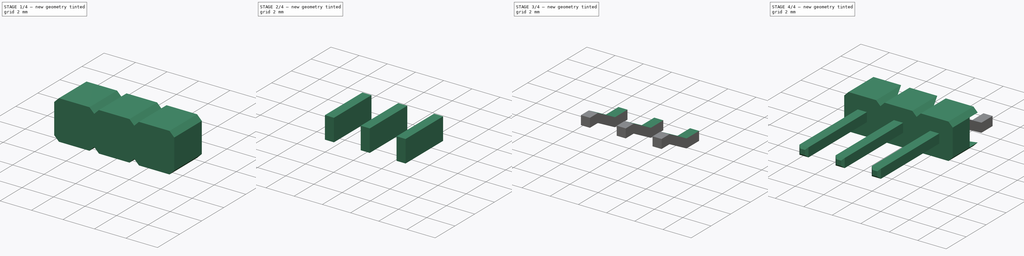
[diagram: build sequence overview — one tinted view per stage of 4, left to right]
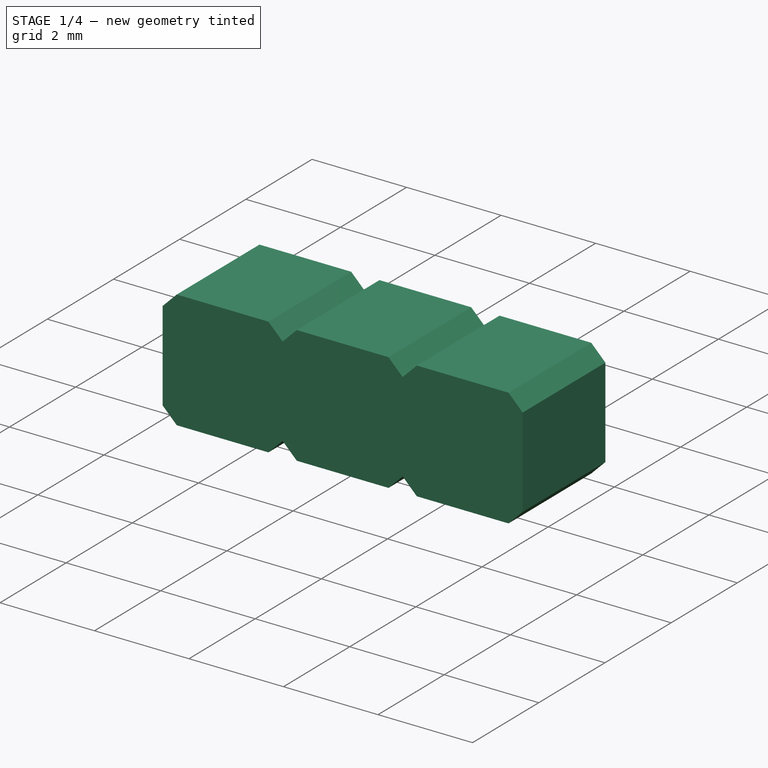
[diagram: stage 1 of 4 — iso view after this stage's code; geometry added in this stage tinted green]
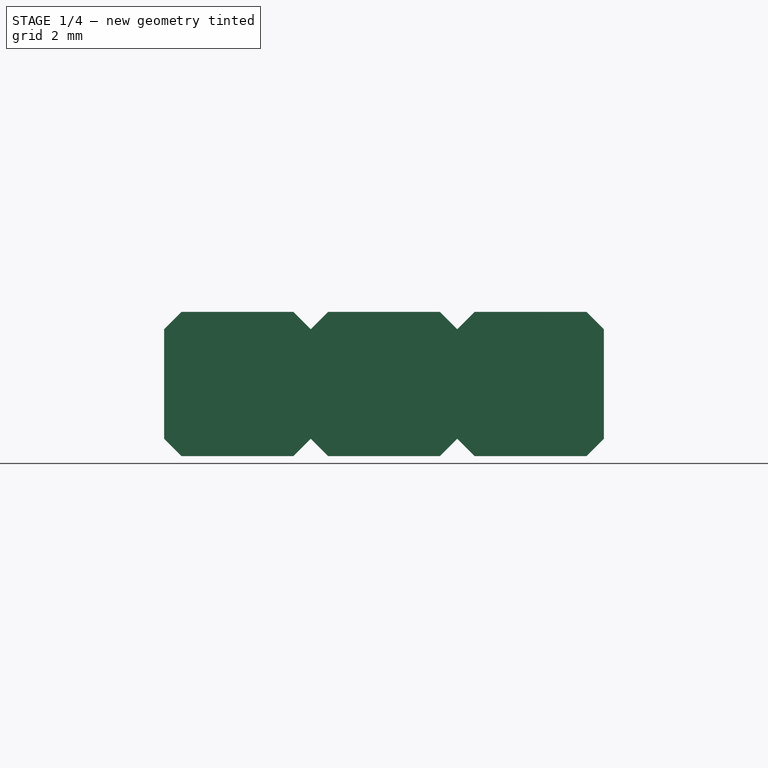
[diagram: stage 1 of 4 — front view after this stage's code; geometry added in this stage tinted green]
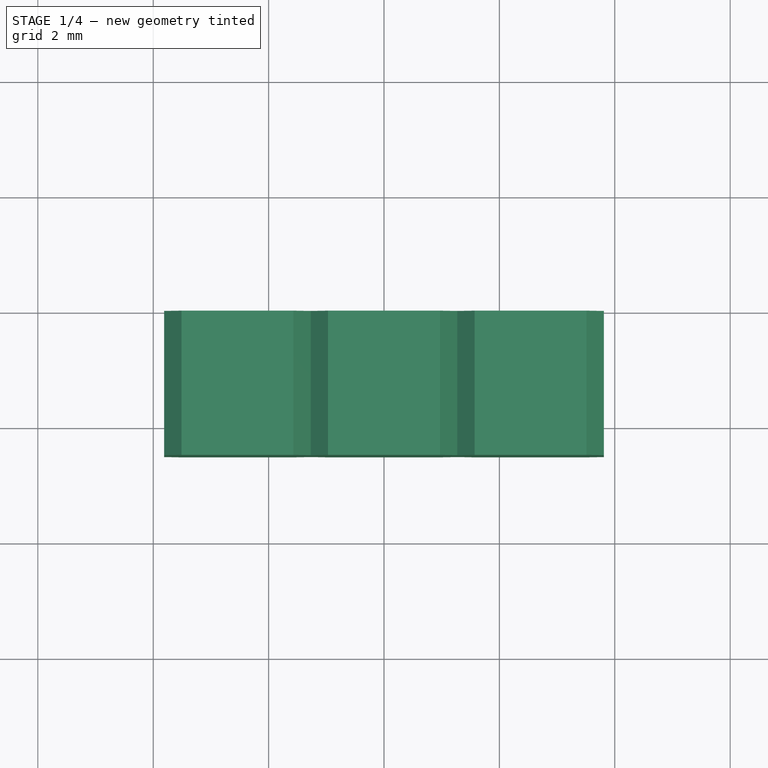
[diagram: stage 1 of 4 — top view after this stage's code; geometry added in this stage tinted green]
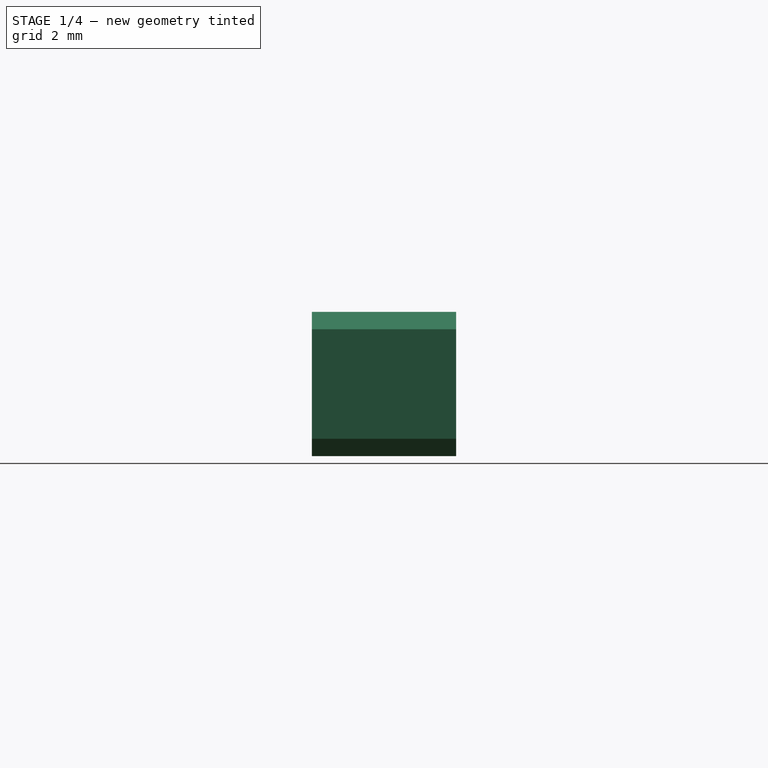
[diagram: stage 1 of 4 — right view after this stage's code; geometry added in this stage tinted green]
FCSTD DOCUMENT  (FreeCAD 0.17R13522 (Git))
Label: 3POS_Header
License: All rights reserved
LicenseURL: http://en.wikipedia.org/wiki/All_rights_reserved
objects: Sketcher::SketchObject×6, Part::Extrusion×6, Part::Chamfer×3, Part::Cut×2, Part::MultiCommon×1, Part::Fillet×1, Part::MultiFuse×1
note: 20 computed .brp shape members not serialized (recipe doc carries the construction recipe); baked Part::Feature solids carry a one-line shape summary decoded from their .brp

FEATURE [Sketcher::SketchObject] Sketch
  Placement = pos=(0,0,0) rot=(-1,0,0;4.71239rad)
  sketch-geometry (4):
    g0: LineSegment StartX=-3.81 StartY=1.25 StartZ=0 EndX=3.81 EndY=1.25 EndZ=0
    g1: LineSegment StartX=3.81 StartY=1.25 StartZ=0 EndX=3.81 EndY=-1.25 EndZ=0
    g2: LineSegment StartX=3.81 StartY=-1.25 StartZ=0 EndX=-3.81 EndY=-1.25 EndZ=0
    g3: LineSegment StartX=-3.81 StartY=-1.25 StartZ=0 EndX=-3.81 EndY=1.25 EndZ=0
  constraints (10):
    c: Coincident(g0,g1)
    c: Coincident(g1,g2)
    c: Coincident(g2,g3)
    c: Coincident(g3,g0)
    c: Horizontal(g0)
    c: Horizontal(g2)
    c: Vertical(g1)
    c: Vertical(g3)
    c: Distance(g0) = 7.62
    c: Distance(g1) = 2.5
FEATURE [Part::Extrusion] Extrude
  Base = -> Sketch
  Dir = (0,-1,0)
  DirMode = 2
  FaceMakerClass = Part::FaceMakerBullseye
  LengthFwd = 2.5
  LengthRev = 0
  Solid = true
  Symmetric = false
FEATURE [Part::Chamfer] Chamfer
  Base = -> Extrude
  Edges = 4 edges r=0.3: [Edge1,Edge2,Edge5,Edge8]
FEATURE [Sketcher::SketchObject] Sketch001
  MapMode = 5
  Placement = pos=(0,-2.5,0) rot=(1,0,0;1.5708rad)
  Support = -> [Chamfer]
  sketch-geometry (12):
    g0: LineSegment StartX=-1.57 StartY=1.25 StartZ=0 EndX=-1.27 EndY=0.95 EndZ=0
    g1: LineSegment StartX=-1.27 StartY=0.95 StartZ=0 EndX=-0.97 EndY=1.25 EndZ=0
    g2: LineSegment StartX=-1.57 StartY=1.25 StartZ=0 EndX=-0.97 EndY=1.25 EndZ=0
    g3: LineSegment StartX=1.57 StartY=1.25 StartZ=0 EndX=1.27 EndY=0.95 EndZ=0
    g4: LineSegment StartX=1.27 StartY=0.95 StartZ=0 EndX=0.97 EndY=1.25 EndZ=0
    g5: LineSegment StartX=1.57 StartY=1.25 StartZ=0 EndX=0.97 EndY=1.25 EndZ=0
    g6: LineSegment StartX=-1.57 StartY=-1.25 StartZ=0 EndX=-1.27 EndY=-0.95 EndZ=0
    g7: LineSegment StartX=-1.27 StartY=-0.95 StartZ=0 EndX=-0.97 EndY=-1.25 EndZ=0
    g8: LineSegment StartX=-1.57 StartY=-1.25 StartZ=0 EndX=-0.97 EndY=-1.25 EndZ=0
    g9: LineSegment StartX=1.57 StartY=-1.25 StartZ=0 EndX=1.27 EndY=-0.95 EndZ=0
    g10: LineSegment StartX=1.27 StartY=-0.95 StartZ=0 EndX=0.97 EndY=-1.25 EndZ=0
    g11: LineSegment StartX=1.57 StartY=-1.25 StartZ=0 EndX=0.97 EndY=-1.25 EndZ=0
  constraints (4):
    c: Horizontal(g2)
    c: Horizontal(g5)
    c: Horizontal(g8)
    c: Horizontal(g11)
FEATURE [Part::Extrusion] Extrude001
  Base = -> Sketch001
  Dir = (0,-1,0)
  DirMode = 2
  FaceMakerClass = Part::FaceMakerBullseye
  LengthFwd = 0
  LengthRev = 2.5
  Solid = true
  Symmetric = false
FEATURE [Part::Cut] Cut
  Base = -> Chamfer
  Tool = -> Extrude001
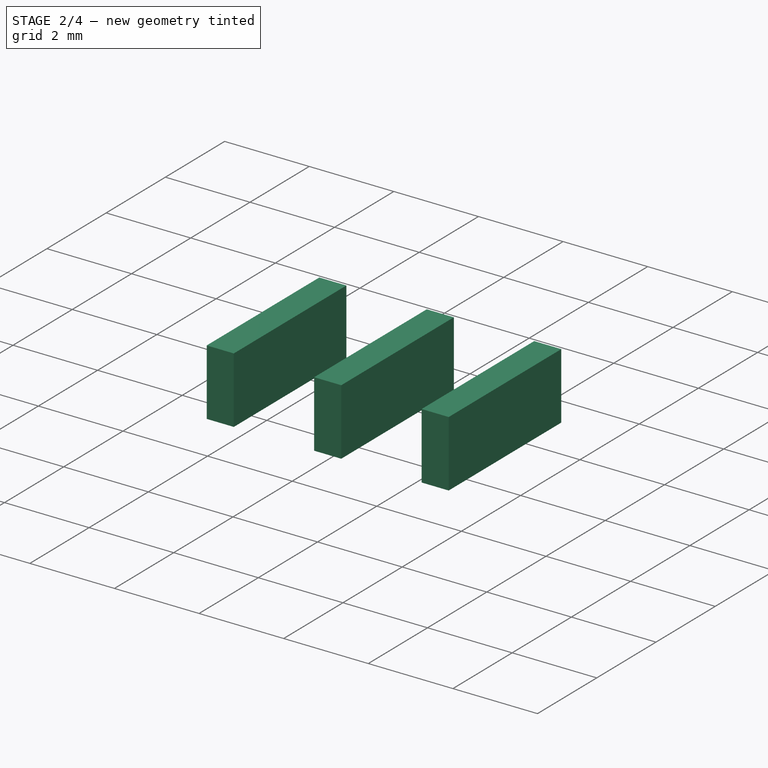
[diagram: stage 2 of 4 — iso view after this stage's code; geometry added in this stage tinted green]
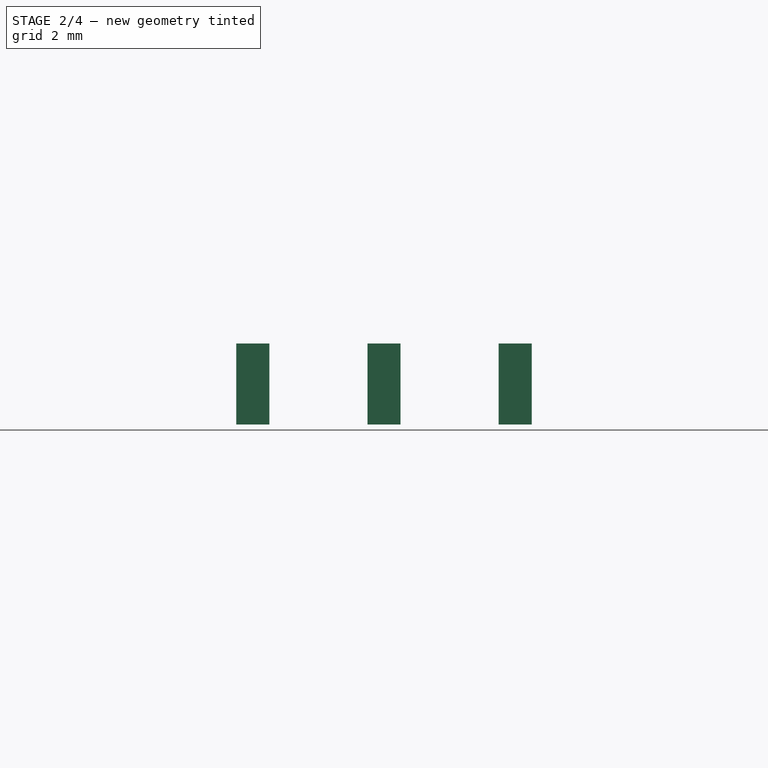
[diagram: stage 2 of 4 — front view after this stage's code; geometry added in this stage tinted green]
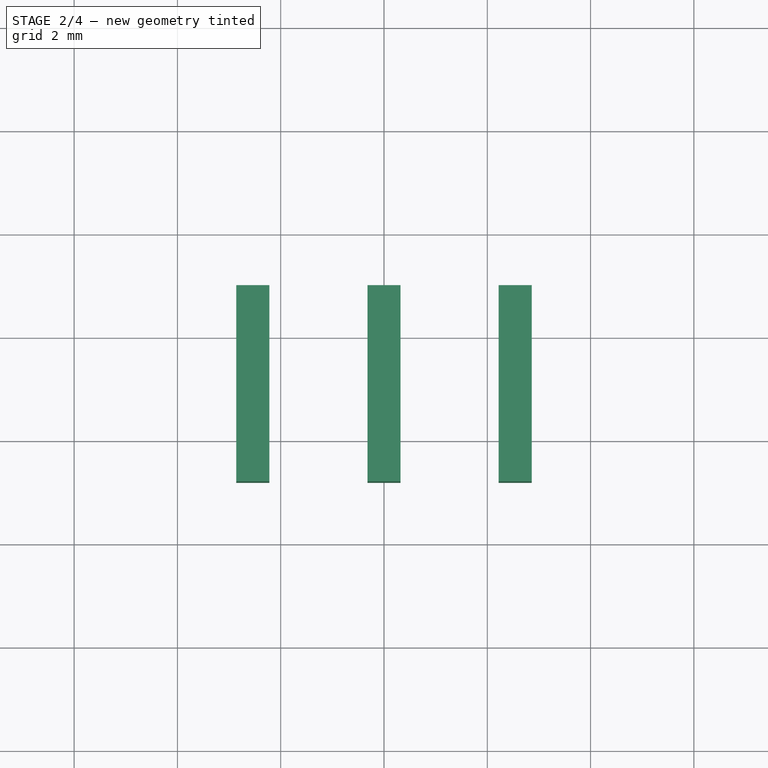
[diagram: stage 2 of 4 — top view after this stage's code; geometry added in this stage tinted green]
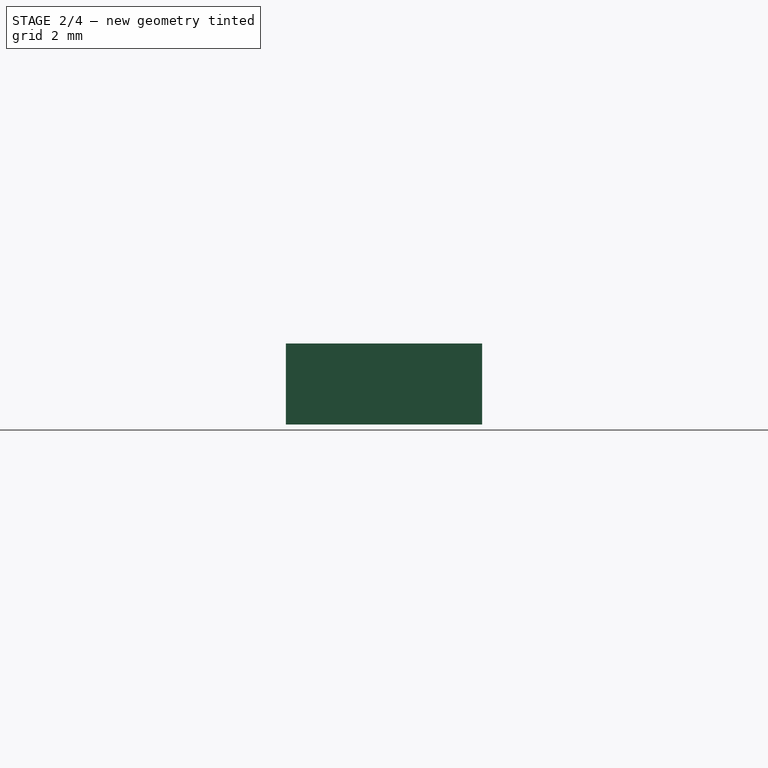
[diagram: stage 2 of 4 — right view after this stage's code; geometry added in this stage tinted green]
FEATURE [Sketcher::SketchObject] Sketch003
  MapMode = 5
  Placement = pos=(-3.81,0,0) rot=(0.57735,-0.57735,-0.57735;2.0944rad)
  Support = -> [Cut]
  sketch-geometry (4):
    g0: LineSegment StartX=0 StartY=0.95 StartZ=0 EndX=0.8 EndY=0.95 EndZ=0
    g1: LineSegment StartX=0.8 StartY=0.95 StartZ=0 EndX=0.8 EndY=-0.95 EndZ=0
    g2: LineSegment StartX=0.8 StartY=-0.95 StartZ=0 EndX=0 EndY=-0.95 EndZ=0
    g3: LineSegment StartX=0 StartY=-0.95 StartZ=0 EndX=0 EndY=0.95 EndZ=0
  constraints (11):
    c: PointOnObject(g0,g-2)
    c: Coincident(g0,g1)
    c: Coincident(g1,g2)
    c: Coincident(g2,g3)
    c: Coincident(g3,g0)
    c: Horizontal(g0)
    c: Horizontal(g2)
    c: Vertical(g1)
    c: Vertical(g3)
    c: Distance(g0) = 0.8
    c: Distance(g1) = 1.9
FEATURE [Part::Extrusion] Extrude003
  Base = -> Sketch003
  Dir = (-1,0,0)
  DirMode = 2
  FaceMakerClass = Part::FaceMakerBullseye
  LengthFwd = 0
  LengthRev = 7.62
  Solid = true
  Symmetric = false
FEATURE [Part::Cut] Cut001
  Base = -> Cut
  Tool = -> Extrude003
FEATURE [Sketcher::SketchObject] Sketch004
  MapMode = 5
  Placement = pos=(0,-0.8,0) rot=(0,0.707107,0.707107;3.14159rad)
  Support = -> [Cut001]
  sketch-geometry (12):
    g0: LineSegment StartX=-0.32 StartY=0.32 StartZ=0 EndX=0.32 EndY=0.32 EndZ=0
    g1: LineSegment StartX=0.32 StartY=0.32 StartZ=0 EndX=0.32 EndY=-1.25 EndZ=0
    g2: LineSegment StartX=0.32 StartY=-1.25 StartZ=0 EndX=-0.32 EndY=-1.25 EndZ=0
    g3: LineSegment StartX=-0.32 StartY=-1.25 StartZ=0 EndX=-0.32 EndY=0.32 EndZ=0
    g4: LineSegment StartX=-2.86 StartY=0.32 StartZ=0 EndX=-2.22 EndY=0.32 EndZ=0
    g5: LineSegment StartX=-2.22 StartY=0.32 StartZ=0 EndX=-2.22 EndY=-1.25 EndZ=0
    g6: LineSegment StartX=-2.22 StartY=-1.25 StartZ=0 EndX=-2.86 EndY=-1.25 EndZ=0
    g7: LineSegment StartX=-2.86 StartY=-1.25 StartZ=0 EndX=-2.86 EndY=0.32 EndZ=0
    g8: LineSegment StartX=2.22 StartY=0.32 StartZ=0 EndX=2.86 EndY=0.32 EndZ=0
    g9: LineSegment StartX=2.86 StartY=0.32 StartZ=0 EndX=2.86 EndY=-1.25 EndZ=0
    g10: LineSegment StartX=2.86 StartY=-1.25 StartZ=0 EndX=2.22 EndY=-1.25 EndZ=0
    g11: LineSegment StartX=2.22 StartY=-1.25 StartZ=0 EndX=2.22 EndY=0.32 EndZ=0
  constraints (30):
    c: Coincident(g0,g1)
    c: Coincident(g1,g2)
    c: Coincident(g2,g3)
    c: Coincident(g3,g0)
    c: Horizontal(g0)
    c: Horizontal(g2)
    c: Vertical(g1)
    c: Vertical(g3)
    c: Distance(g0) = 0.64
    c: Distance(g1) = 1.57
    c: Coincident(g4,g5)
    c: Coincident(g5,g6)
    c: Coincident(g6,g7)
    c: Coincident(g7,g4)
    c: Horizontal(g4)
    c: Horizontal(g6)
    c: Vertical(g5)
    c: Vertical(g7)
    c: Distance(g4) = 0.64
    c: Distance(g5) = 1.57
    c: Coincident(g8,g9)
    c: Coincident(g9,g10)
    c: Coincident(g10,g11)
    c: Coincident(g11,g8)
    c: Horizontal(g8)
    c: Horizontal(g10)
    c: Vertical(g9)
    c: Vertical(g11)
    c: Distance(g8) = 0.64
    c: Distance(g9) = 1.57
FEATURE [Part::Extrusion] Extrude004
  Base = -> Sketch004
  Dir = (0,1,0)
  DirMode = 2
  FaceMakerClass = Part::FaceMakerBullseye
  LengthFwd = 3.8
  LengthRev = 0
  Solid = true
  Symmetric = false
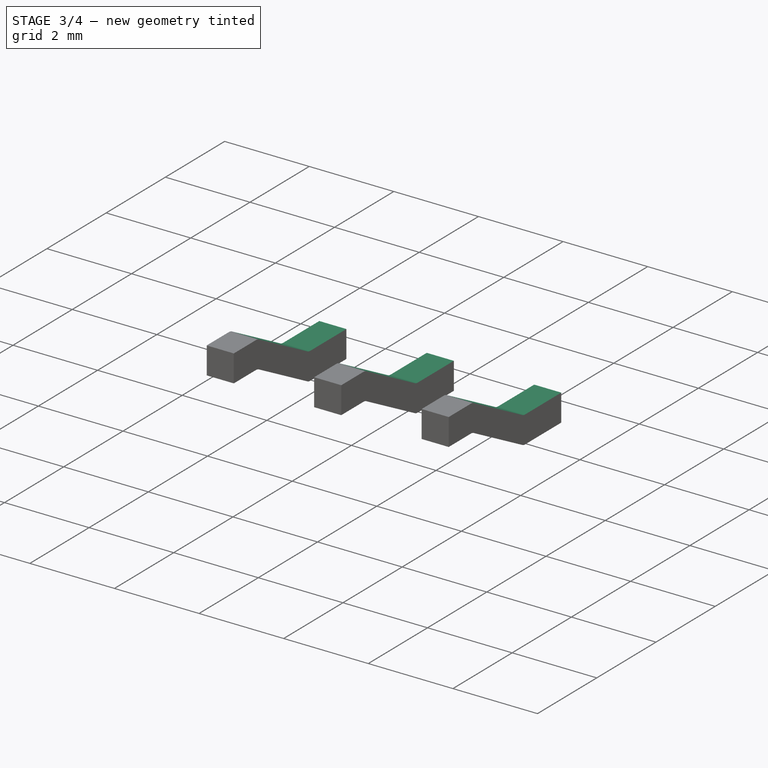
[diagram: stage 3 of 4 — iso view after this stage's code; geometry added in this stage tinted green]
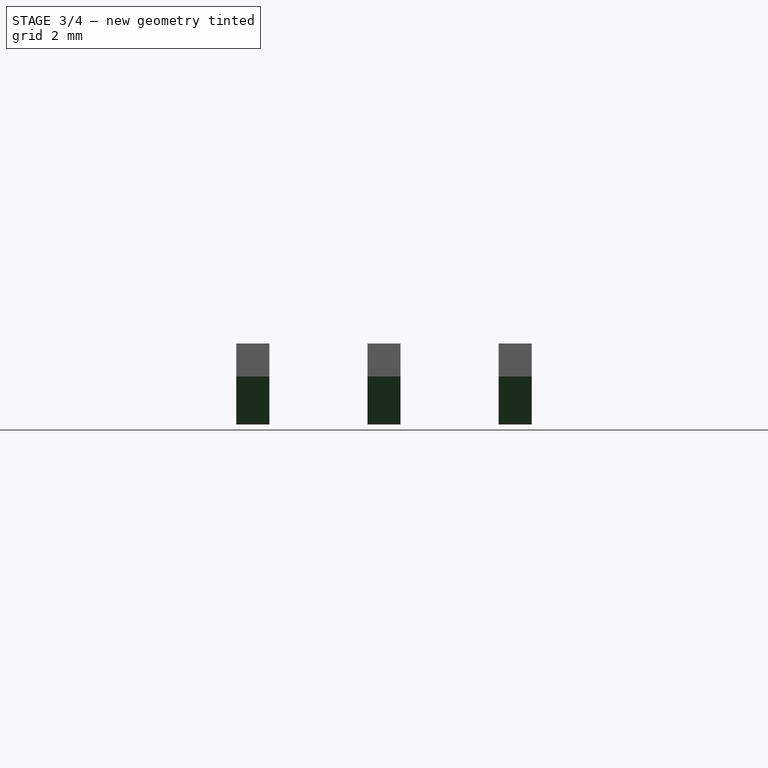
[diagram: stage 3 of 4 — front view after this stage's code; geometry added in this stage tinted green]
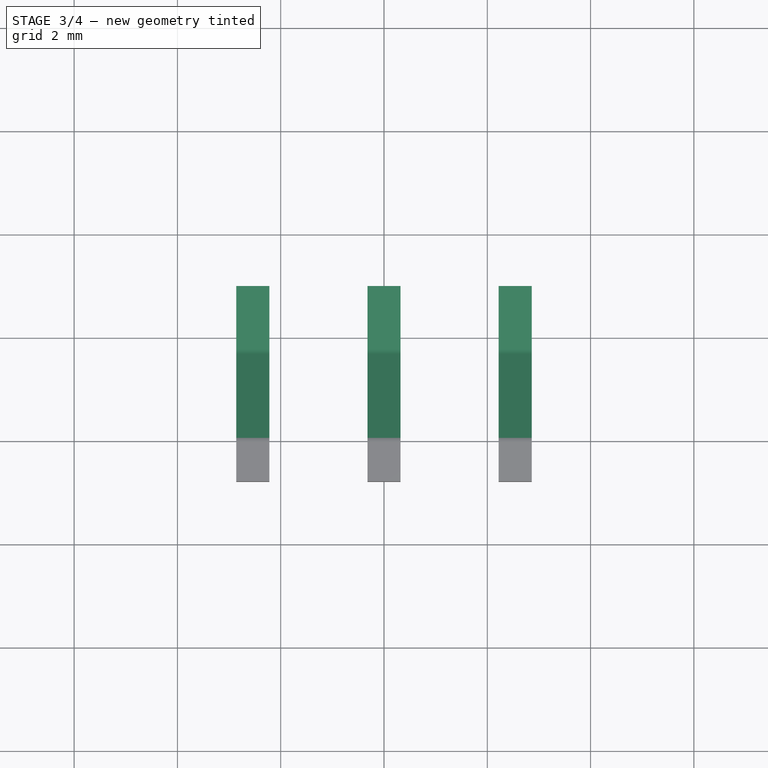
[diagram: stage 3 of 4 — top view after this stage's code; geometry added in this stage tinted green]
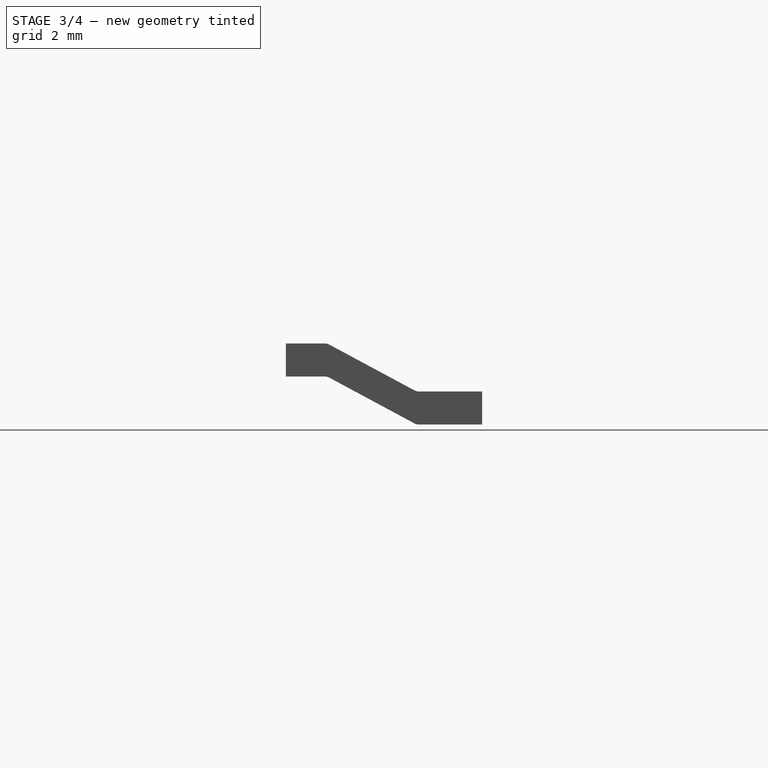
[diagram: stage 3 of 4 — right view after this stage's code; geometry added in this stage tinted green]
FEATURE [Sketcher::SketchObject] Sketch005
  MapMode = 5
  Placement = pos=(-2.86,0,0) rot=(0.57735,-0.57735,-0.57735;2.0944rad)
  Support = -> [Extrude004]
  sketch-geometry (8):
    g0: LineSegment StartX=0.8 StartY=0.32 StartZ=0 EndX=0 EndY=0.32 EndZ=0
    g1: LineSegment StartX=0 StartY=-0.32 StartZ=0 EndX=0.8 EndY=-0.32 EndZ=0
    g2: LineSegment StartX=0.8 StartY=-0.32 StartZ=0 EndX=0.8 EndY=0.32 EndZ=0
    g3: LineSegment StartX=-3 StartY=-1.25 StartZ=0 EndX=-1.73 EndY=-1.25 EndZ=0
    g4: LineSegment StartX=-1.73 StartY=-0.61 StartZ=0 EndX=-3 EndY=-0.61 EndZ=0
    g5: LineSegment StartX=-3 StartY=-0.61 StartZ=0 EndX=-3 EndY=-1.25 EndZ=0
    g6: LineSegment StartX=-1.73 StartY=-0.61 StartZ=0 EndX=0 EndY=0.32 EndZ=0
    g7: LineSegment StartX=-1.73 StartY=-1.25 StartZ=0 EndX=0 EndY=-0.32 EndZ=0
  constraints (13):
    c: Coincident(g1,g2)
    c: Coincident(g2,g0)
    c: Horizontal(g0)
    c: Horizontal(g1)
    c: Vertical(g2)
    c: PointOnObject(g1,g-2)
    c: Coincident(g4,g5)
    c: Coincident(g5,g3)
    c: Horizontal(g3)
    c: Horizontal(g4)
    c: Vertical(g5)
    c: Distance(g4) = 1.27
    c: Coincident(g7,g3)
FEATURE [Part::Extrusion] Extrude005
  Base = -> Sketch005
  Dir = (-1,0,0)
  DirMode = 2
  FaceMakerClass = Part::FaceMakerBullseye
  LengthFwd = 0
  LengthRev = 5.72
  Solid = true
  Symmetric = false
FEATURE [Part::MultiCommon] Common
  Shapes = -> [Extrude005,Extrude004]
FEATURE [Part::Fillet] Fillet
  Base = -> Common
  Edges = 12 edges r=0.2: [Edge4,Edge20,Edge21,Edge22,Edge28,Edge44,Edge45,Edge46,Edge52,Edge68,Edge69,Edge70]
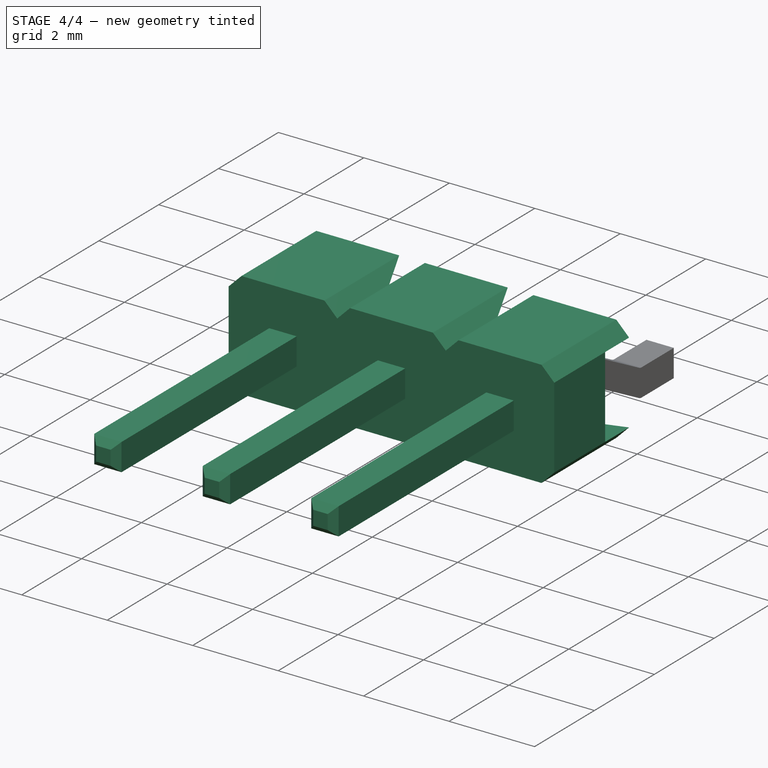
[diagram: stage 4 of 4 — iso view after this stage's code; geometry added in this stage tinted green]
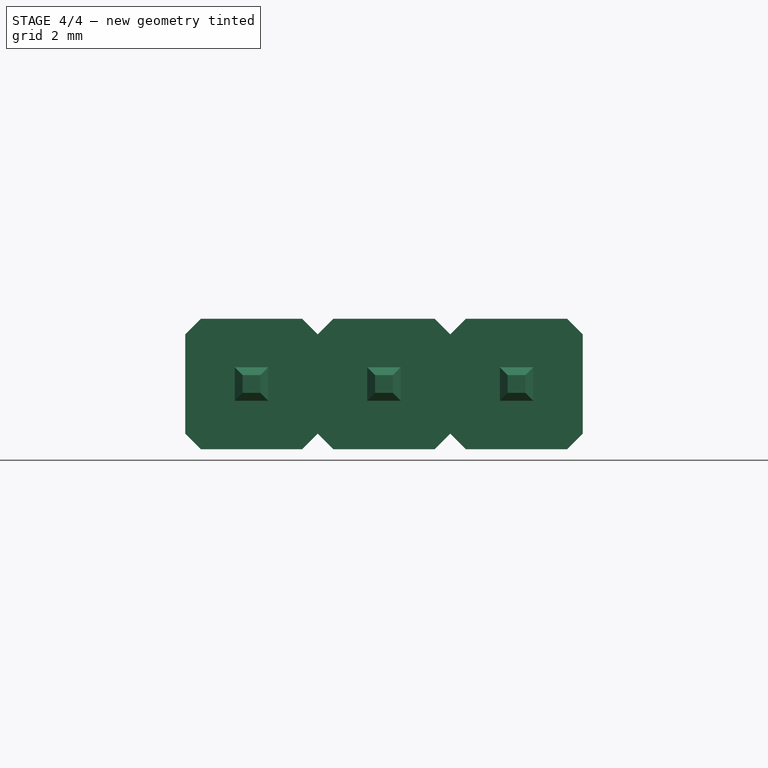
[diagram: stage 4 of 4 — front view after this stage's code; geometry added in this stage tinted green]
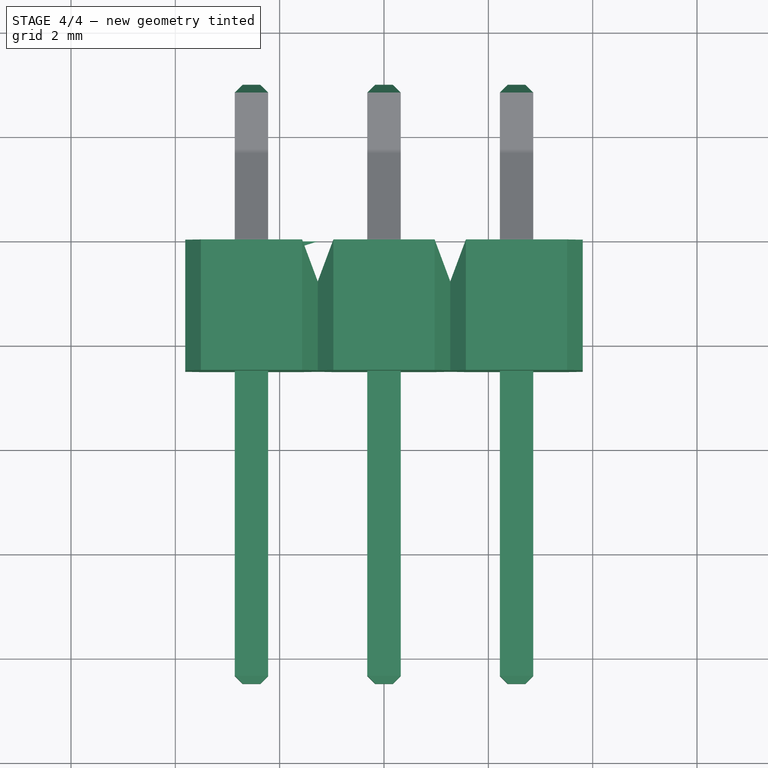
[diagram: stage 4 of 4 — top view after this stage's code; geometry added in this stage tinted green]
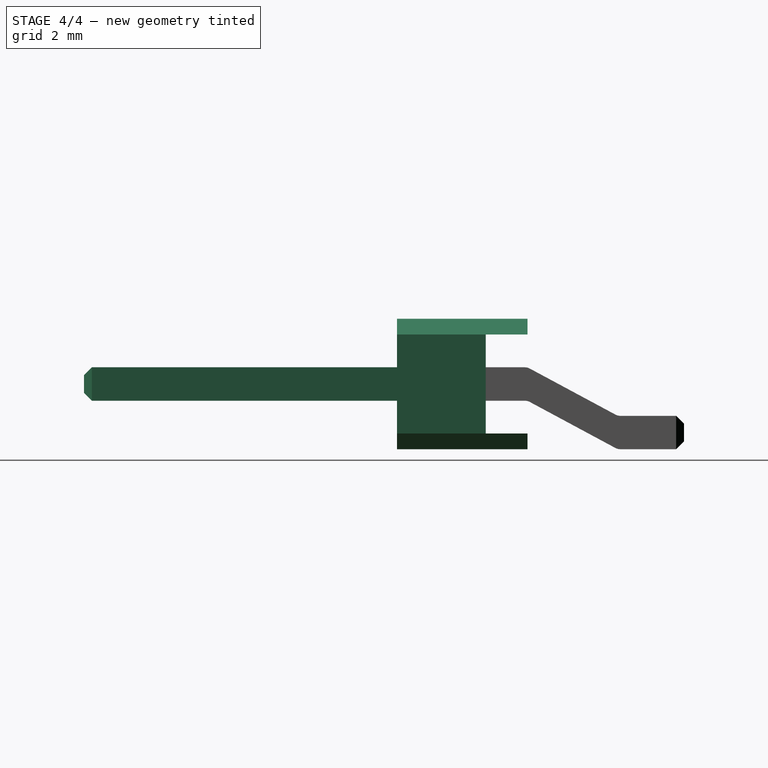
[diagram: stage 4 of 4 — right view after this stage's code; geometry added in this stage tinted green]
FEATURE [Sketcher::SketchObject] Sketch002
  MapMode = 5
  Placement = pos=(0,-2.5,0) rot=(1,0,0;1.5708rad)
  Support = -> [Cut]
  sketch-geometry (12):
    g0: LineSegment StartX=0.32 StartY=0.32 StartZ=0 EndX=-0.32 EndY=0.32 EndZ=0
    g1: LineSegment StartX=-0.32 StartY=0.32 StartZ=0 EndX=-0.32 EndY=-0.32 EndZ=0
    g2: LineSegment StartX=-0.32 StartY=-0.32 StartZ=0 EndX=0.32 EndY=-0.32 EndZ=0
    g3: LineSegment StartX=0.32 StartY=-0.32 StartZ=0 EndX=0.32 EndY=0.32 EndZ=0
    g4: LineSegment StartX=-2.22 StartY=0.32 StartZ=0 EndX=-2.86 EndY=0.32 EndZ=0
    g5: LineSegment StartX=-2.86 StartY=0.32 StartZ=0 EndX=-2.86 EndY=-0.32 EndZ=0
    g6: LineSegment StartX=-2.86 StartY=-0.32 StartZ=0 EndX=-2.22 EndY=-0.32 EndZ=0
    g7: LineSegment StartX=-2.22 StartY=-0.32 StartZ=0 EndX=-2.22 EndY=0.32 EndZ=0
    g8: LineSegment StartX=2.86 StartY=0.32 StartZ=0 EndX=2.22 EndY=0.32 EndZ=0
    g9: LineSegment StartX=2.22 StartY=0.32 StartZ=0 EndX=2.22 EndY=-0.32 EndZ=0
    g10: LineSegment StartX=2.22 StartY=-0.32 StartZ=0 EndX=2.86 EndY=-0.32 EndZ=0
    g11: LineSegment StartX=2.86 StartY=-0.32 StartZ=0 EndX=2.86 EndY=0.32 EndZ=0
  constraints (27):
    c: Coincident(g0,g1)
    c: Coincident(g1,g2)
    c: Coincident(g2,g3)
    c: Coincident(g3,g0)
    c: Equal(g0,g1)
    c: Equal(g0,g2)
    c: Equal(g0,g3)
    c: Horizontal(g2)
    c: Distance(g0) = 0.64
    c: Coincident(g4,g5)
    c: Coincident(g5,g6)
    c: Coincident(g6,g7)
    c: Coincident(g7,g4)
    c: Equal(g4,g5)
    c: Equal(g4,g6)
    c: Equal(g4,g7)
    c: Horizontal(g6)
    c: Distance(g4) = 0.64
    c: Coincident(g8,g9)
    c: Coincident(g9,g10)
    c: Coincident(g10,g11)
    c: Coincident(g11,g8)
    c: Equal(g8,g9)
    c: Equal(g8,g10)
    c: Equal(g8,g11)
    c: Horizontal(g10)
    c: Distance(g8) = 0.64
FEATURE [Part::Extrusion] Extrude002
  Base = -> Sketch002
  Dir = (0,-1,0)
  DirMode = 2
  FaceMakerClass = Part::FaceMakerBullseye
  LengthFwd = 6
  LengthRev = 0
  Solid = true
  Symmetric = false
FEATURE [Part::Chamfer] Chamfer001
  Base = -> Extrude002
  Edges = 12 edges r=0.15: [Edge4,Edge7,Edge10,Edge12,Edge16,Edge19,Edge22,Edge24,Edge28,Edge31,Edge34,Edge36]
FEATURE [Part::Chamfer] Chamfer002
  Base = -> Fillet
  Edges = 12 edges r=0.15: [Edge3,Edge10,Edge18,Edge19,Edge39,Edge47,Edge54,Edge55,Edge75,Edge83,Edge90,Edge91]
FEATURE [Part::MultiFuse] Fusion
  Shapes = -> [Chamfer002,Chamfer001,Cut001]
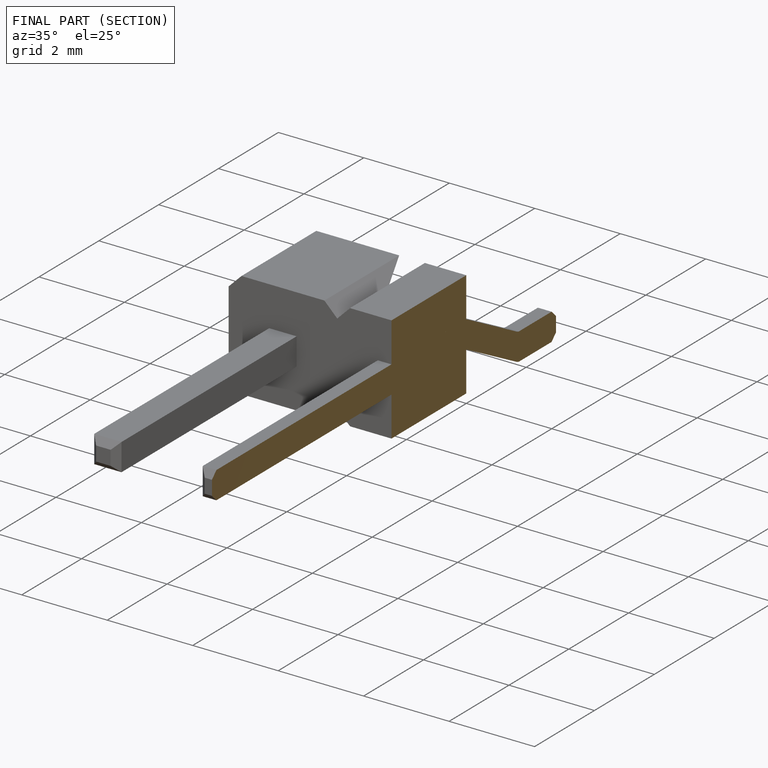
[diagram: finished part — half-section view (interior)]
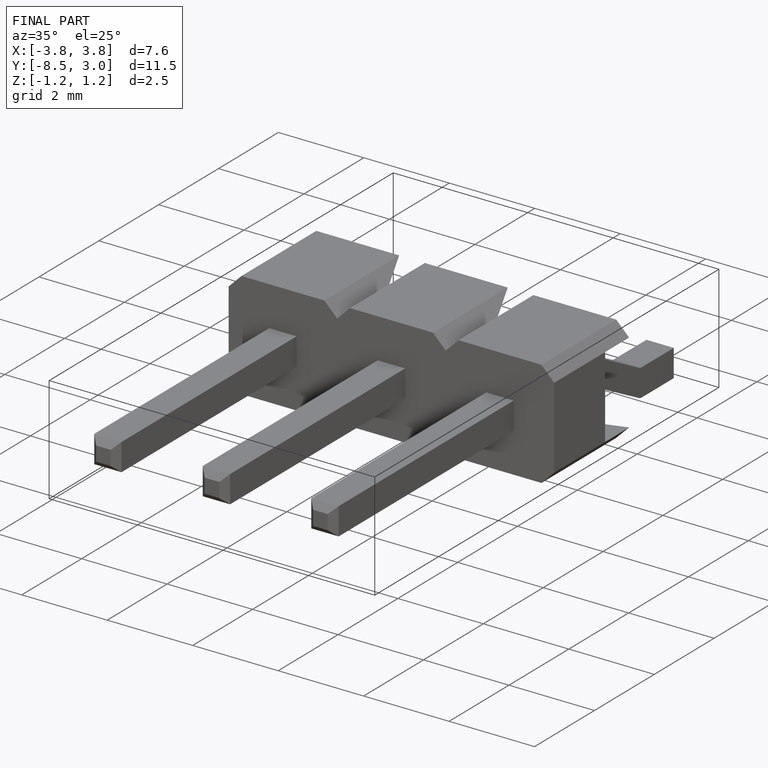
[diagram: finished part — iso view with bounding-box wireframe]
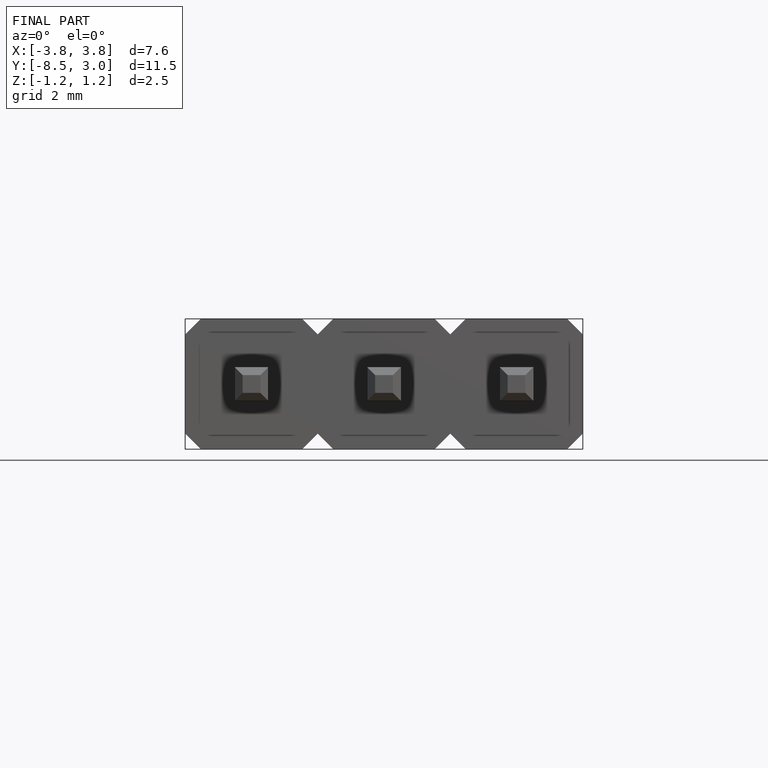
[diagram: finished part — front view with bounding-box wireframe]
